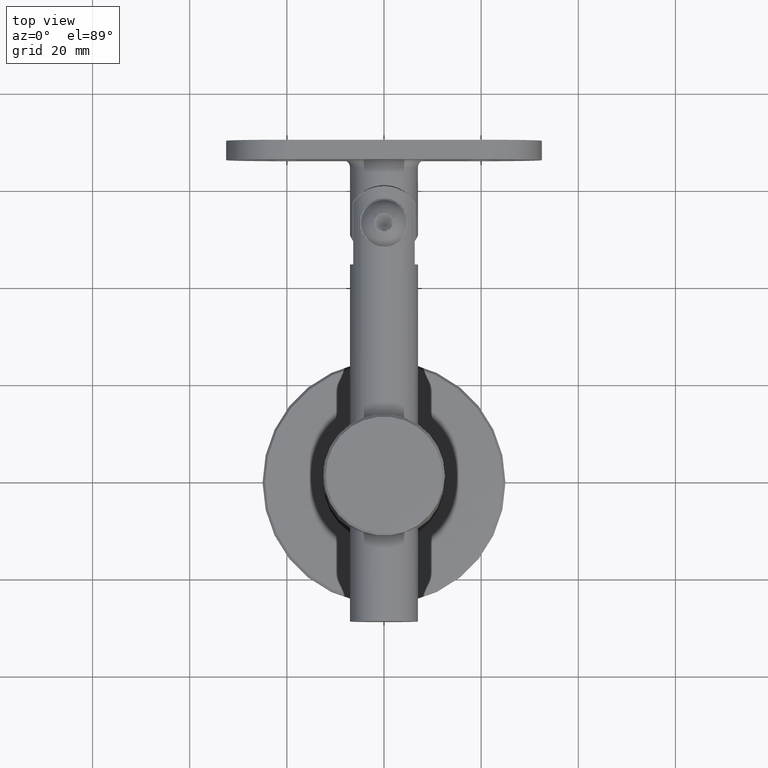
[diagram: clean part render]
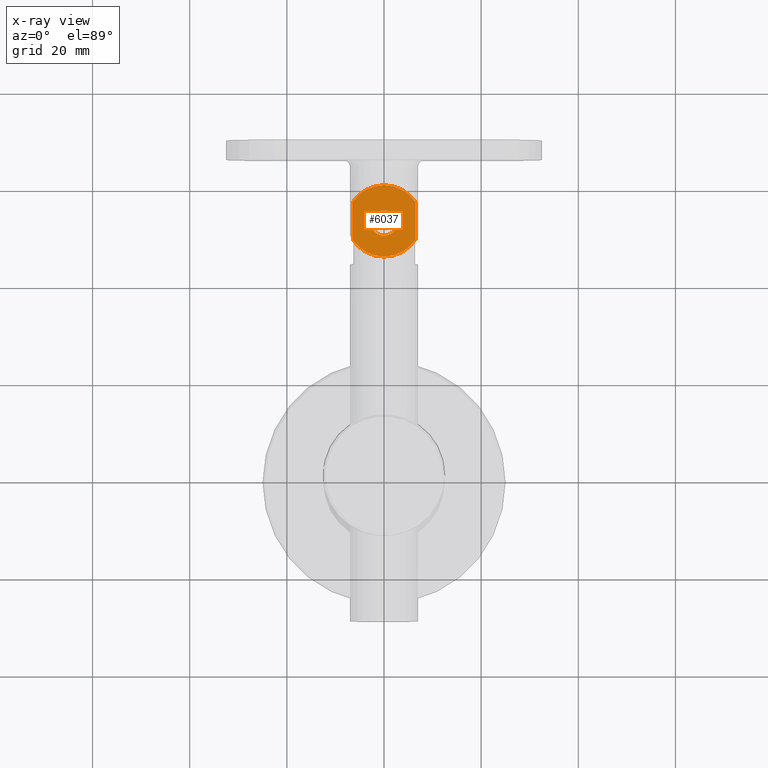
[diagram: x-ray — body ghosted, one internal face saturated and labeled with its STEP entity id]
A machine part, top view, then the same camera in x-ray: the body is ghosted and one INTERNAL B-rep face — a face not visible from any outside direction — is saturated and labeled: STEP entity #6037.
In plain terms, the highlighted planar face has unit normal (-0, -0, 1).
Its self-contained STEP definition (entity closure, byte-faithful):
#100 = EDGE_LOOP ( 'NONE', ( #12744, #13745, #6638, #19224 ) ) ;
#335 = PLANE ( 'NONE',  #17287 ) ;
#687 = AXIS2_PLACEMENT_3D ( 'NONE', #1893, #12359, #3406 ) ;
#934 = DIRECTION ( 'NONE',  ( -1.000000000000000000, -0.0000000000000000000, -0.0000000000000000000 ) ) ;
#1697 = CARTESIAN_POINT ( 'NONE',  ( 2.750000000000000000, -8.684330874591989200, 6.437196594791866600 ) ) ;
#1893 = CARTESIAN_POINT ( 'NONE',  ( 2.749999999999999100, -12.17000000000000300, 1.734723475976807100E-015 ) ) ;
#1909 = CARTESIAN_POINT ( 'NONE',  ( 2.750000000000000000, 500000.0000000000600, -6.437196594791866600 ) ) ;
#2082 = EDGE_CURVE ( 'NONE', #9985, #10515, #3211, .T. ) ;
#3211 = LINE ( 'NONE', #1909, #17698 ) ;
#3406 = DIRECTION ( 'NONE',  ( 0.0000000000000000000, 0.0000000000000000000, -1.000000000000000000 ) ) ;
#3554 = DIRECTION ( 'NONE',  ( 0.0000000000000000000, 0.0000000000000000000, -1.000000000000000000 ) ) ;
#3995 = DIRECTION ( 'NONE',  ( 1.000000000000000000, 0.0000000000000000000, 0.0000000000000000000 ) ) ;
#5103 = CIRCLE ( 'NONE', #13265, 7.750000000000000000 ) ;
#5437 = VECTOR ( 'NONE', #9413, 1000.000000000000000 ) ;
#5704 = FACE_BOUND ( 'NONE', #11030, .T. ) ;
#6037 = ADVANCED_FACE ( 'NONE', ( #5704, #17179 ), #335, .T. ) ;
#6638 = ORIENTED_EDGE ( 'NONE', *, *, #2082, .T. ) ;
#6795 = EDGE_CURVE ( 'NONE', #9577, #9985, #11308, .T. ) ;
#6983 = CIRCLE ( 'NONE', #10230, 2.599999999999977400 ) ;
#7017 = CARTESIAN_POINT ( 'NONE',  ( 2.750000000000000000, -8.684330874591989200, -6.437196594791866600 ) ) ;
#7877 = CARTESIAN_POINT ( 'NONE',  ( 2.750000000000000000, -13.00000000000000500, 0.0000000000000000000 ) ) ;
#8510 = CARTESIAN_POINT ( 'NONE',  ( 2.750000000000000000, -13.00000000000000500, 0.0000000000000000000 ) ) ;
#8637 = DIRECTION ( 'NONE',  ( 0.0000000000000000000, 0.0000000000000000000, -1.000000000000000000 ) ) ;
#8854 = CARTESIAN_POINT ( 'NONE',  ( 2.749999999999999600, -16.48566912540802000, 6.437196594791866600 ) ) ;
#9054 = ORIENTED_EDGE ( 'NONE', *, *, #18356, .T. ) ;
#9348 = CARTESIAN_POINT ( 'NONE',  ( 2.750000000000000000, 500000.0000000000600, 6.437196594791866600 ) ) ;
#9413 = DIRECTION ( 'NONE',  ( -0.0000000000000000000, -1.000000000000000000, -0.0000000000000000000 ) ) ;
#9414 = LINE ( 'NONE', #9348, #5437 ) ;
#9577 = VERTEX_POINT ( 'NONE', #8854 ) ;
#9985 = VERTEX_POINT ( 'NONE', #10589 ) ;
#10230 = AXIS2_PLACEMENT_3D ( 'NONE', #19128, #934, #12923 ) ;
#10515 = VERTEX_POINT ( 'NONE', #7017 ) ;
#10589 = CARTESIAN_POINT ( 'NONE',  ( 2.749999999999999100, -16.48566912540801600, -6.437196594791866600 ) ) ;
#11030 = EDGE_LOOP ( 'NONE', ( #9054 ) ) ;
#11308 = CIRCLE ( 'NONE', #687, 7.749999999999998200 ) ;
#12116 = VERTEX_POINT ( 'NONE', #14170 ) ;
#12359 = DIRECTION ( 'NONE',  ( 1.000000000000000000, 0.0000000000000000000, 0.0000000000000000000 ) ) ;
#12442 = EDGE_CURVE ( 'NONE', #17470, #9577, #9414, .T. ) ;
#12564 = DIRECTION ( 'NONE',  ( 0.0000000000000000000, 1.000000000000000000, 0.0000000000000000000 ) ) ;
#12744 = ORIENTED_EDGE ( 'NONE', *, *, #12442, .T. ) ;
#12923 = DIRECTION ( 'NONE',  ( 0.0000000000000000000, 0.0000000000000000000, -1.000000000000000000 ) ) ;
#13265 = AXIS2_PLACEMENT_3D ( 'NONE', #8510, #3995, #8637 ) ;
#13745 = ORIENTED_EDGE ( 'NONE', *, *, #6795, .T. ) ;
#14170 = CARTESIAN_POINT ( 'NONE',  ( 2.750000000000000000, -13.00000000000000500, -2.599999999999977400 ) ) ;
#16974 = DIRECTION ( 'NONE',  ( 1.000000000000000000, 0.0000000000000000000, 0.0000000000000000000 ) ) ;
#17179 = FACE_OUTER_BOUND ( 'NONE', #100, .T. ) ;
#17287 = AXIS2_PLACEMENT_3D ( 'NONE', #7877, #16974, #3554 ) ;
#17470 = VERTEX_POINT ( 'NONE', #1697 ) ;
#17698 = VECTOR ( 'NONE', #12564, 1000.000000000000000 ) ;
#18356 = EDGE_CURVE ( 'NONE', #12116, #12116, #6983, .T. ) ;
#18721 = EDGE_CURVE ( 'NONE', #10515, #17470, #5103, .T. ) ;
#19128 = CARTESIAN_POINT ( 'NONE',  ( 2.750000000000000000, -13.00000000000000500, 0.0000000000000000000 ) ) ;
#19224 = ORIENTED_EDGE ( 'NONE', *, *, #18721, .T. ) ;